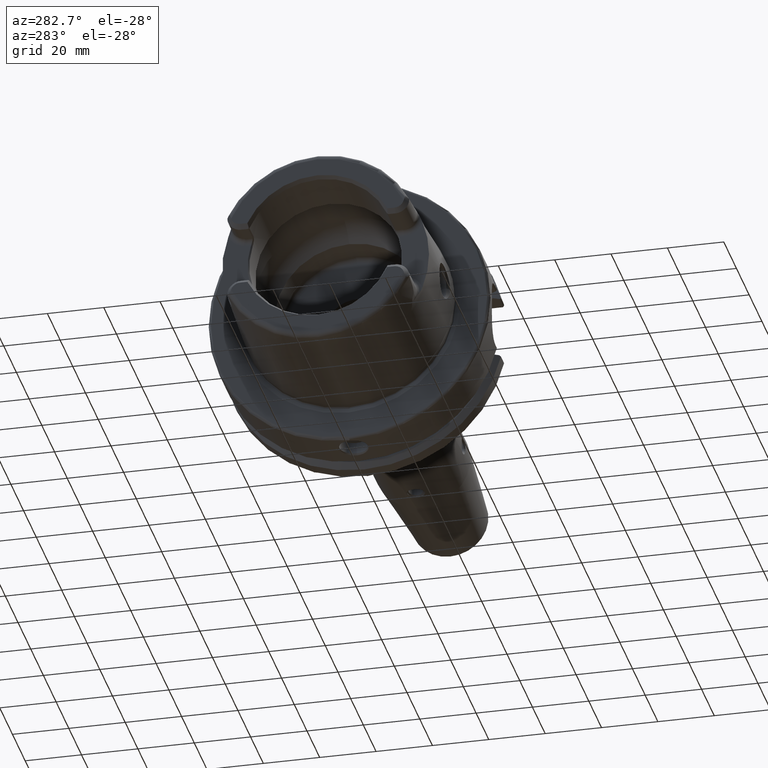
[diagram: clean part render]
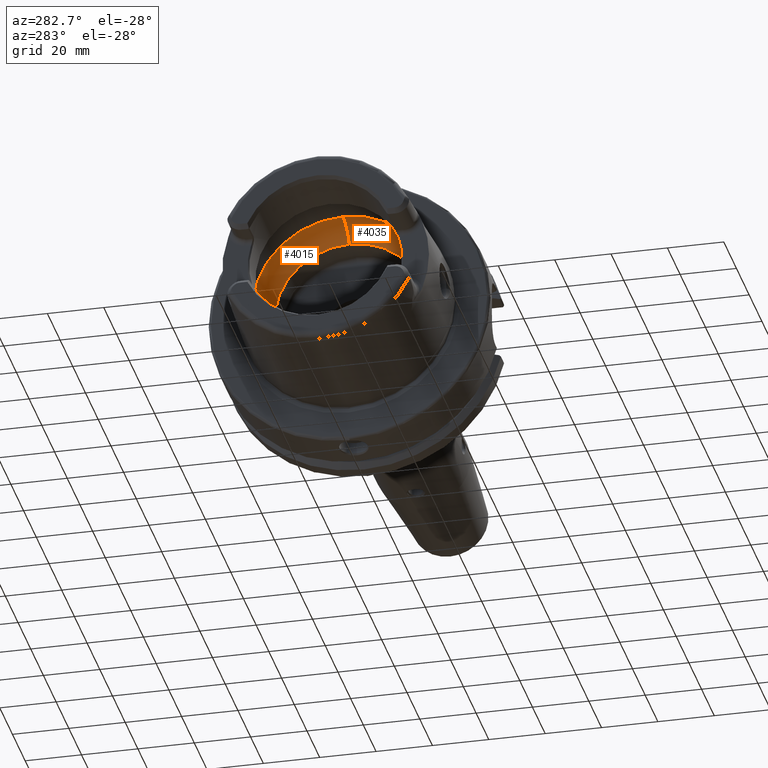
[diagram: same view with one multi-face feature highlighted, each face labeled with its STEP entity id]
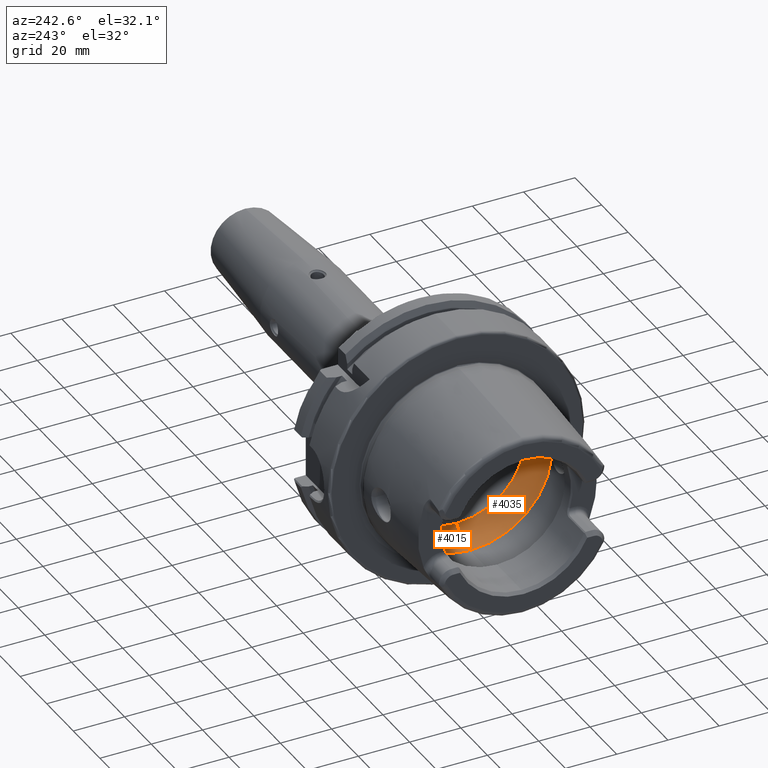
[diagram: same view with one multi-face feature highlighted, each face labeled with its STEP entity id]
A machine part, auxiliary view. The highlighted faces form ONE feature: a constant-radius fillet chain: 2 tangent blend faces with common blend radius 12 mm. The faces share edges in the B-rep.
A second angle (auxiliary view) of the same feature is appended — it is thin or edge-on in the first view.
Their STEP definitions:
[1] entity #4015 (Torus):
#405=CARTESIAN_POINT('',(-9.7468E0,3.184612797556E1,2.898946318923E0));
#445=CARTESIAN_POINT('',(-9.7468E0,3.184612797556E1,-2.898946318923E0));
#446=CARTESIAN_POINT('',(-9.585712343905E0,3.187270030095E1,-2.607038300663E0));
#447=CARTESIAN_POINT('',(-9.311377205430E0,3.191387814764E1,-1.994511035790E0));
#448=CARTESIAN_POINT('',(-9.057685371867E0,3.194743520433E1,-1.015473792980E0));
#449=CARTESIAN_POINT('',(-9.E0,3.195454052960E1,-3.391717034725E-1));
#450=CARTESIAN_POINT('',(-9.E0,3.195454052960E1,0.E0));
#452=CARTESIAN_POINT('',(-9.E0,3.195454052960E1,0.E0));
#453=CARTESIAN_POINT('',(-9.E0,3.195454052960E1,3.391639792420E-1));
#454=CARTESIAN_POINT('',(-9.057686112376E0,3.194743503400E1,1.015454128513E0));
#455=CARTESIAN_POINT('',(-9.311344303356E0,3.191388266561E1,1.994413875809E0));
#456=CARTESIAN_POINT('',(-9.585691055221E0,3.187270381264E1,2.606999723297E0));
#457=CARTESIAN_POINT('',(-9.7468E0,3.184612797556E1,2.898946318923E0));
#459=CARTESIAN_POINT('',(-9.7468E0,0.E0,0.E0));
#460=DIRECTION('',(1.E0,0.E0,0.E0));
#461=DIRECTION('',(0.E0,9.958823615032E-1,9.065496151292E-2));
#462=AXIS2_PLACEMENT_3D('',#459,#460,#461);
#464=CARTESIAN_POINT('',(-9.7468E0,0.E0,1.9977801E1));
#465=DIRECTION('',(0.E0,1.E0,0.E0));
#466=DIRECTION('',(0.E0,0.E0,1.E0));
#467=AXIS2_PLACEMENT_3D('',#464,#465,#466);
#469=CARTESIAN_POINT('',(3.259811553909E-1,0.E0,0.E0));
#470=DIRECTION('',(-1.E0,0.E0,0.E0));
#471=DIRECTION('',(0.E0,0.E0,1.E0));
#472=AXIS2_PLACEMENT_3D('',#469,#470,#471);
#474=CARTESIAN_POINT('',(-9.7468E0,0.E0,0.E0));
#475=DIRECTION('',(1.E0,0.E0,0.E0));
#476=DIRECTION('',(0.E0,0.E0,-1.E0));
#477=AXIS2_PLACEMENT_3D('',#474,#475,#476);
#491=CARTESIAN_POINT('',(-9.7468E0,0.E0,-1.9977801E1));
#492=DIRECTION('',(0.E0,-1.E0,0.E0));
#493=DIRECTION('',(0.E0,0.E0,-1.E0));
#494=AXIS2_PLACEMENT_3D('',#491,#492,#493);
#3056=CARTESIAN_POINT('',(3.259811553909E-1,0.E0,-2.65E1));
#3058=VERTEX_POINT('',#3056);
#3060=CARTESIAN_POINT('',(3.259811553909E-1,0.E0,2.65E1));
#3061=VERTEX_POINT('',#3060);
#3091=CARTESIAN_POINT('',(-9.7468E0,0.E0,-3.1977801E1));
#3092=VERTEX_POINT('',#3091);
#3093=CARTESIAN_POINT('',(-9.7468E0,0.E0,3.1977801E1));
#3094=VERTEX_POINT('',#3093);
#3101=CARTESIAN_POINT('',(-9.E0,3.195454052960E1,0.E0));
#3102=VERTEX_POINT('',#3101);
#3103=VERTEX_POINT('',#445);
#3111=VERTEX_POINT('',#405);
#3998=CARTESIAN_POINT('',(-9.7468E0,0.E0,0.E0));
#3999=DIRECTION('',(1.E0,0.E0,0.E0));
#4000=DIRECTION('',(0.E0,0.E0,1.E0));
#4001=AXIS2_PLACEMENT_3D('',#3998,#3999,#4000);
#4002=TOROIDAL_SURFACE('',#4001,1.9977801E1,1.2E1);
#4003=ORIENTED_EDGE('',*,*,#3949,.T.);
#4004=ORIENTED_EDGE('',*,*,#3992,.T.);
#4005=ORIENTED_EDGE('',*,*,#3933,.T.);
#4007=ORIENTED_EDGE('',*,*,#4006,.T.);
#4009=ORIENTED_EDGE('',*,*,#4008,.T.);
#4011=ORIENTED_EDGE('',*,*,#4010,.F.);
#4012=ORIENTED_EDGE('',*,*,#3926,.T.);
#4013=EDGE_LOOP('',(#4003,#4004,#4005,#4007,#4009,#4011,#4012));
#4014=FACE_OUTER_BOUND('',#4013,.F.);
#4015=ADVANCED_FACE('',(#4014),#4002,.F.);
#451=B_SPLINE_CURVE_WITH_KNOTS('',3,(#445,#446,#447,#448,#449,#450),
.UNSPECIFIED.,.F.,.F.,(4,1,1,4),(0.E0,3.333333333333E-1,6.666666666667E-1,1.E0),
.UNSPECIFIED.);
#458=B_SPLINE_CURVE_WITH_KNOTS('',3,(#452,#453,#454,#455,#456,#457),
.UNSPECIFIED.,.F.,.F.,(4,1,1,4),(0.E0,3.333333333333E-1,6.666666666667E-1,1.E0),
.UNSPECIFIED.);
#463=CIRCLE('',#462,3.1977801E1);
#468=CIRCLE('',#467,1.2E1);
#473=CIRCLE('',#472,2.65E1);
#478=CIRCLE('',#477,3.1977801E1);
#495=CIRCLE('',#494,1.2E1);
#3926=EDGE_CURVE('',#3092,#3103,#478,.T.);
#3933=EDGE_CURVE('',#3111,#3094,#463,.T.);
#3949=EDGE_CURVE('',#3103,#3102,#451,.T.);
#3992=EDGE_CURVE('',#3102,#3111,#458,.T.);
#4006=EDGE_CURVE('',#3094,#3061,#468,.T.);
#4008=EDGE_CURVE('',#3061,#3058,#473,.T.);
#4010=EDGE_CURVE('',#3092,#3058,#495,.T.);
[2] entity #4035 (Torus):
#464=CARTESIAN_POINT('',(-9.7468E0,0.E0,1.9977801E1));
#465=DIRECTION('',(0.E0,1.E0,0.E0));
#466=DIRECTION('',(0.E0,0.E0,1.E0));
#467=AXIS2_PLACEMENT_3D('',#464,#465,#466);
#479=CARTESIAN_POINT('',(-9.E0,-3.195454052960E1,0.E0));
#480=CARTESIAN_POINT('',(-9.E0,-3.195454052960E1,-3.391756010718E-1));
#481=CARTESIAN_POINT('',(-9.057686695634E0,-3.194743504191E1,
-1.015482848611E0));
#482=CARTESIAN_POINT('',(-9.311380443112E0,-3.191387769348E1,
-1.994519605048E0));
#483=CARTESIAN_POINT('',(-9.585714224752E0,-3.187269999069E1,
-2.607041708959E0));
#484=CARTESIAN_POINT('',(-9.7468E0,-3.184612797556E1,-2.898946318923E0));
#486=CARTESIAN_POINT('',(-9.7468E0,0.E0,0.E0));
#487=DIRECTION('',(1.E0,0.E0,0.E0));
#488=DIRECTION('',(0.E0,-9.958823615032E-1,-9.065496151292E-2));
#489=AXIS2_PLACEMENT_3D('',#486,#487,#488);
#491=CARTESIAN_POINT('',(-9.7468E0,0.E0,-1.9977801E1));
#492=DIRECTION('',(0.E0,-1.E0,0.E0));
#493=DIRECTION('',(0.E0,0.E0,-1.E0));
#494=AXIS2_PLACEMENT_3D('',#491,#492,#493);
#496=CARTESIAN_POINT('',(3.259811553909E-1,0.E0,0.E0));
#497=DIRECTION('',(-1.E0,0.E0,0.E0));
#498=DIRECTION('',(0.E0,0.E0,-1.E0));
#499=AXIS2_PLACEMENT_3D('',#496,#497,#498);
#501=CARTESIAN_POINT('',(-9.7468E0,0.E0,0.E0));
#502=DIRECTION('',(1.E0,0.E0,0.E0));
#503=DIRECTION('',(0.E0,0.E0,1.E0));
#504=AXIS2_PLACEMENT_3D('',#501,#502,#503);
#506=CARTESIAN_POINT('',(-9.7468E0,-3.184612797556E1,2.898946318923E0));
#507=CARTESIAN_POINT('',(-9.585689302070E0,-3.187270410183E1,2.606996546400E0));
#508=CARTESIAN_POINT('',(-9.311341285587E0,-3.191388308891E1,1.994405888284E0));
#509=CARTESIAN_POINT('',(-9.057684878308E0,-3.194743518543E1,1.015445686589E0));
#510=CARTESIAN_POINT('',(-9.E0,-3.195454052960E1,3.391603457747E-1));
#511=CARTESIAN_POINT('',(-9.E0,-3.195454052960E1,0.E0));
#3056=CARTESIAN_POINT('',(3.259811553909E-1,0.E0,-2.65E1));
#3058=VERTEX_POINT('',#3056);
#3060=CARTESIAN_POINT('',(3.259811553909E-1,0.E0,2.65E1));
#3061=VERTEX_POINT('',#3060);
#3089=VERTEX_POINT('',#479);
#3090=VERTEX_POINT('',#484);
#3091=CARTESIAN_POINT('',(-9.7468E0,0.E0,-3.1977801E1));
#3092=VERTEX_POINT('',#3091);
#3093=CARTESIAN_POINT('',(-9.7468E0,0.E0,3.1977801E1));
#3094=VERTEX_POINT('',#3093);
#3095=CARTESIAN_POINT('',(-9.7468E0,-3.184612797556E1,2.898946318923E0));
#3096=VERTEX_POINT('',#3095);
#4016=CARTESIAN_POINT('',(-9.7468E0,0.E0,0.E0));
#4017=DIRECTION('',(1.E0,0.E0,0.E0));
#4018=DIRECTION('',(0.E0,0.E0,1.E0));
#4019=AXIS2_PLACEMENT_3D('',#4016,#4017,#4018);
#4020=TOROIDAL_SURFACE('',#4019,1.9977801E1,1.2E1);
#4022=ORIENTED_EDGE('',*,*,#4021,.T.);
#4024=ORIENTED_EDGE('',*,*,#4023,.T.);
#4025=ORIENTED_EDGE('',*,*,#4010,.T.);
#4027=ORIENTED_EDGE('',*,*,#4026,.T.);
#4028=ORIENTED_EDGE('',*,*,#4006,.F.);
#4030=ORIENTED_EDGE('',*,*,#4029,.T.);
#4032=ORIENTED_EDGE('',*,*,#4031,.T.);
#4033=EDGE_LOOP('',(#4022,#4024,#4025,#4027,#4028,#4030,#4032));
#4034=FACE_OUTER_BOUND('',#4033,.F.);
#4035=ADVANCED_FACE('',(#4034),#4020,.F.);
#468=CIRCLE('',#467,1.2E1);
#485=B_SPLINE_CURVE_WITH_KNOTS('',3,(#479,#480,#481,#482,#483,#484),
.UNSPECIFIED.,.F.,.F.,(4,1,1,4),(0.E0,3.333333333333E-1,6.666666666667E-1,1.E0),
.UNSPECIFIED.);
#490=CIRCLE('',#489,3.1977801E1);
#495=CIRCLE('',#494,1.2E1);
#500=CIRCLE('',#499,2.65E1);
#505=CIRCLE('',#504,3.1977801E1);
#512=B_SPLINE_CURVE_WITH_KNOTS('',3,(#506,#507,#508,#509,#510,#511),
.UNSPECIFIED.,.F.,.F.,(4,1,1,4),(0.E0,3.333333333333E-1,6.666666666667E-1,1.E0),
.UNSPECIFIED.);
#4006=EDGE_CURVE('',#3094,#3061,#468,.T.);
#4010=EDGE_CURVE('',#3092,#3058,#495,.T.);
#4021=EDGE_CURVE('',#3089,#3090,#485,.T.);
#4023=EDGE_CURVE('',#3090,#3092,#490,.T.);
#4026=EDGE_CURVE('',#3058,#3061,#500,.T.);
#4029=EDGE_CURVE('',#3094,#3096,#505,.T.);
#4031=EDGE_CURVE('',#3096,#3089,#512,.T.);